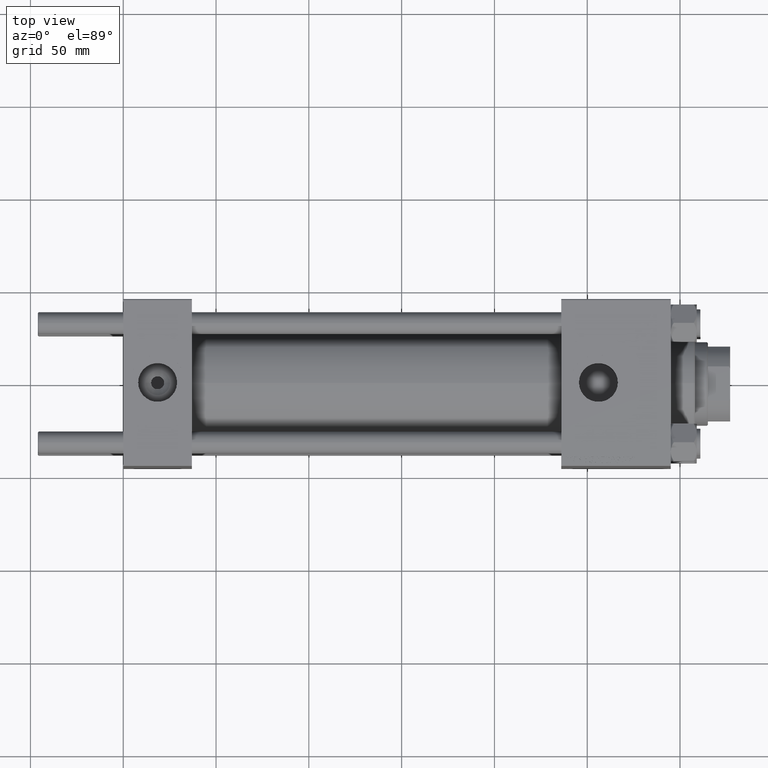
[diagram: clean part render]
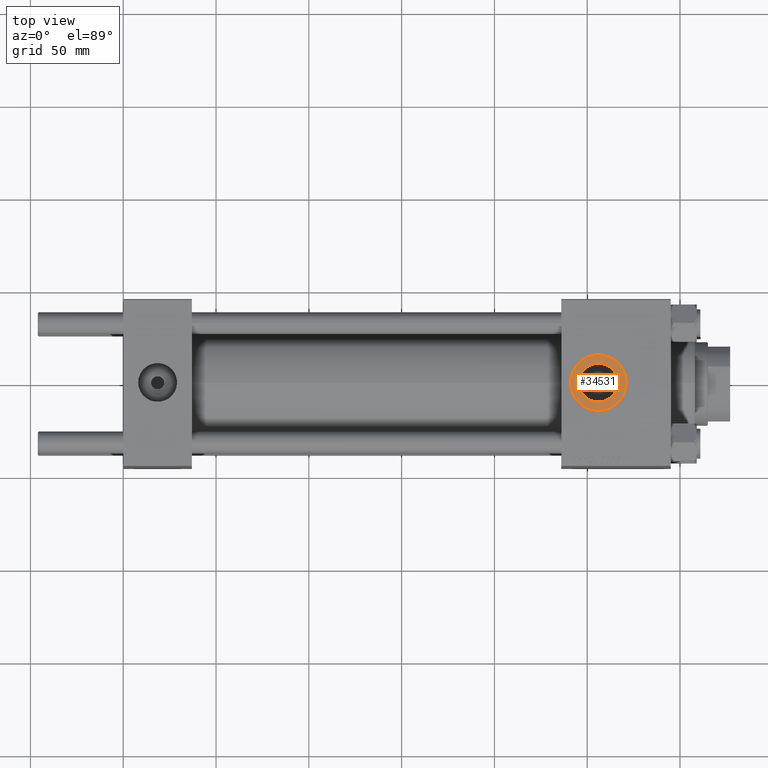
[diagram: same view with one face highlighted and labeled with its STEP entity id]
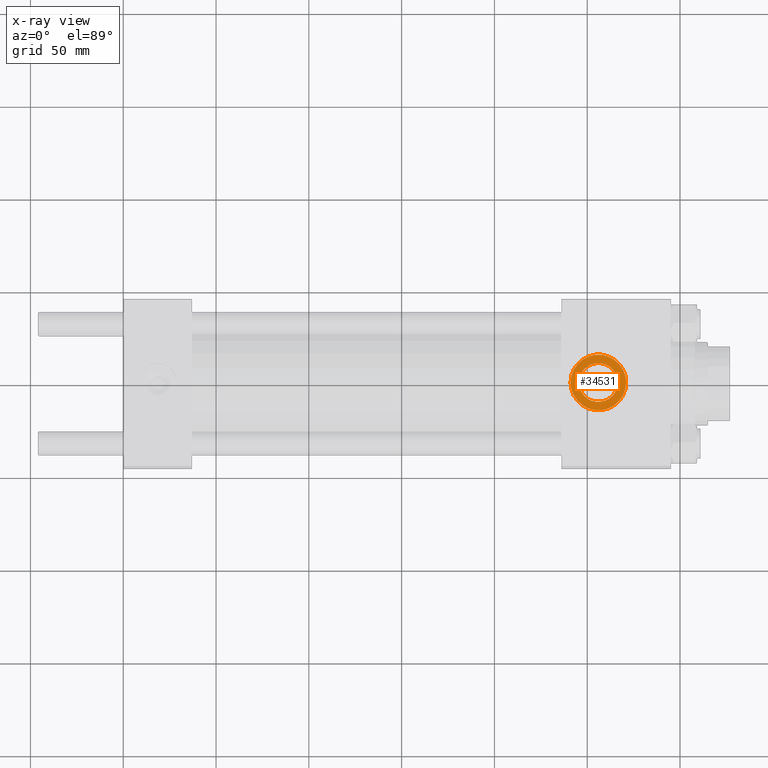
[diagram: x-ray of the same camera — body ghosted, the highlighted face saturated]
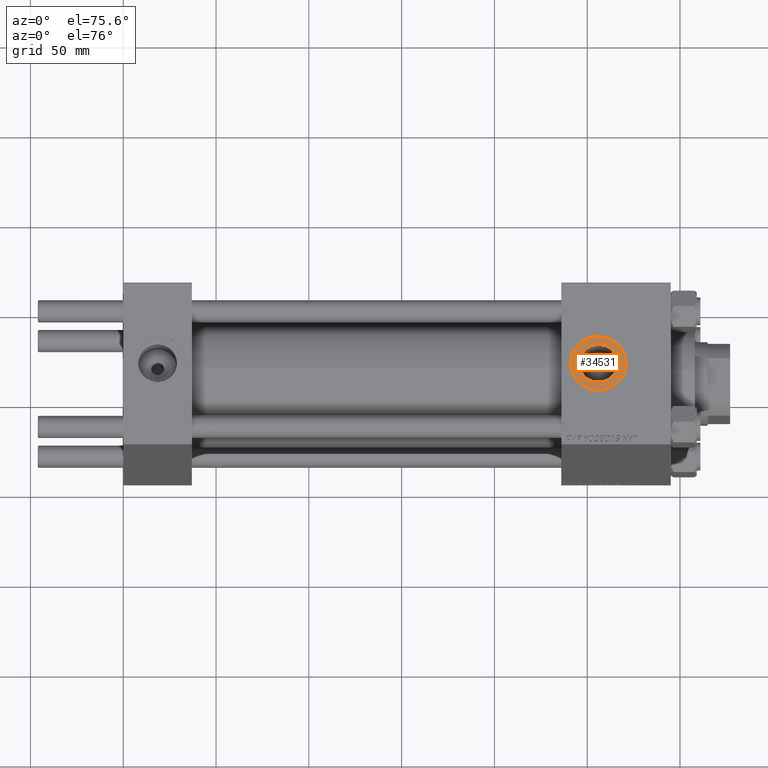
[diagram: same view with one face highlighted and labeled with its STEP entity id]
A machine part, top view. The second image highlights one B-rep face of the part: STEP entity #34531.
The next image is the same camera in x-ray: the body ghosted, the highlighted face saturated — about 0% of this face is hidden behind the body in this view.
A second angle (auxiliary view) of the same face is appended — the face is thin or edge-on in the first view.
In plain terms, the highlighted planar face has unit normal (0, 0, 1).
Its self-contained STEP definition (entity closure, byte-faithful):
#785 = EDGE_CURVE ( 'NONE', #13501, #47262, #28926, .T. ) ;
#2589 = ORIENTED_EDGE ( 'NONE', *, *, #15737, .T. ) ;
#3292 = CARTESIAN_POINT ( 'NONE',  ( 256.0000000000000000, -6.938893903907227589E-15, 44.79999999999999005 ) ) ;
#5148 = DIRECTION ( 'NONE',  ( -0.000000000000000000, -0.000000000000000000, -1.000000000000000000 ) ) ;
#5197 = AXIS2_PLACEMENT_3D ( 'NONE', #45549, #30255, #11135 ) ;
#6118 = CARTESIAN_POINT ( 'NONE',  ( 271.0000000000000000, -6.938893903907227589E-15, 44.79999999999999005 ) ) ;
#6796 = CIRCLE ( 'NONE', #38072, 15.00000000000001421 ) ;
#7229 = AXIS2_PLACEMENT_3D ( 'NONE', #3292, #40772, #48553 ) ;
#8122 = ORIENTED_EDGE ( 'NONE', *, *, #785, .T. ) ;
#9723 = VERTEX_POINT ( 'NONE', #17262 ) ;
#11135 = DIRECTION ( 'NONE',  ( 1.000000000000000000, 0.000000000000000000, 0.000000000000000000 ) ) ;
#11298 = CARTESIAN_POINT ( 'NONE',  ( 241.0000000000000000, -5.101923705186193267E-15, 44.79999999999999005 ) ) ;
#11546 = CARTESIAN_POINT ( 'NONE',  ( 256.0000000000000000, -6.938893903907227589E-15, 44.79999999999999005 ) ) ;
#13260 = CIRCLE ( 'NONE', #5197, 10.47999999999998977 ) ;
#13501 = VERTEX_POINT ( 'NONE', #11298 ) ;
#14705 = AXIS2_PLACEMENT_3D ( 'NONE', #39597, #5148, #37337 ) ;
#15194 = CARTESIAN_POINT ( 'NONE',  ( 245.5200000000000102, -6.938893903907227589E-15, 44.79999999999999005 ) ) ;
#15737 = EDGE_CURVE ( 'NONE', #47262, #13501, #6796, .T. ) ;
#17262 = CARTESIAN_POINT ( 'NONE',  ( 266.4800000000000182, -5.655464058400803678E-15, 44.79999999999999005 ) ) ;
#25460 = EDGE_LOOP ( 'NONE', ( #2589, #8122 ) ) ;
#28926 = CIRCLE ( 'NONE', #7229, 15.00000000000001421 ) ;
#29202 = FACE_OUTER_BOUND ( 'NONE', #25460, .T. ) ;
#30255 = DIRECTION ( 'NONE',  ( -0.000000000000000000, -0.000000000000000000, -1.000000000000000000 ) ) ;
#30737 = CIRCLE ( 'NONE', #14705, 10.47999999999998977 ) ;
#33057 = EDGE_CURVE ( 'NONE', #33157, #9723, #30737, .T. ) ;
#33157 = VERTEX_POINT ( 'NONE', #15194 ) ;
#34531 = ADVANCED_FACE ( 'NONE', ( #40479, #29202 ), #49012, .T. ) ;
#34666 = DIRECTION ( 'NONE',  ( 0.000000000000000000, 0.000000000000000000, 1.000000000000000000 ) ) ;
#37337 = DIRECTION ( 'NONE',  ( 1.000000000000000000, 0.000000000000000000, 0.000000000000000000 ) ) ;
#37785 = ORIENTED_EDGE ( 'NONE', *, *, #33057, .T. ) ;
#37955 = DIRECTION ( 'NONE',  ( 1.000000000000000000, 0.000000000000000000, -0.000000000000000000 ) ) ;
#38072 = AXIS2_PLACEMENT_3D ( 'NONE', #42656, #46933, #45937 ) ;
#39597 = CARTESIAN_POINT ( 'NONE',  ( 256.0000000000000000, -6.938893903907227589E-15, 44.79999999999999005 ) ) ;
#39887 = EDGE_LOOP ( 'NONE', ( #37785, #43716 ) ) ;
#40479 = FACE_BOUND ( 'NONE', #39887, .T. ) ;
#40772 = DIRECTION ( 'NONE',  ( 0.000000000000000000, 0.000000000000000000, 1.000000000000000000 ) ) ;
#42172 = EDGE_CURVE ( 'NONE', #9723, #33157, #13260, .T. ) ;
#42656 = CARTESIAN_POINT ( 'NONE',  ( 256.0000000000000000, -6.938893903907227589E-15, 44.79999999999999005 ) ) ;
#42799 = AXIS2_PLACEMENT_3D ( 'NONE', #11546, #34666, #37955 ) ;
#43716 = ORIENTED_EDGE ( 'NONE', *, *, #42172, .T. ) ;
#45549 = CARTESIAN_POINT ( 'NONE',  ( 256.0000000000000000, -6.938893903907227589E-15, 44.79999999999999005 ) ) ;
#45937 = DIRECTION ( 'NONE',  ( 1.000000000000000000, 0.000000000000000000, 0.000000000000000000 ) ) ;
#46933 = DIRECTION ( 'NONE',  ( 0.000000000000000000, 0.000000000000000000, 1.000000000000000000 ) ) ;
#47262 = VERTEX_POINT ( 'NONE', #6118 ) ;
#48553 = DIRECTION ( 'NONE',  ( 1.000000000000000000, 0.000000000000000000, 0.000000000000000000 ) ) ;
#49012 = PLANE ( 'NONE',  #42799 ) ;